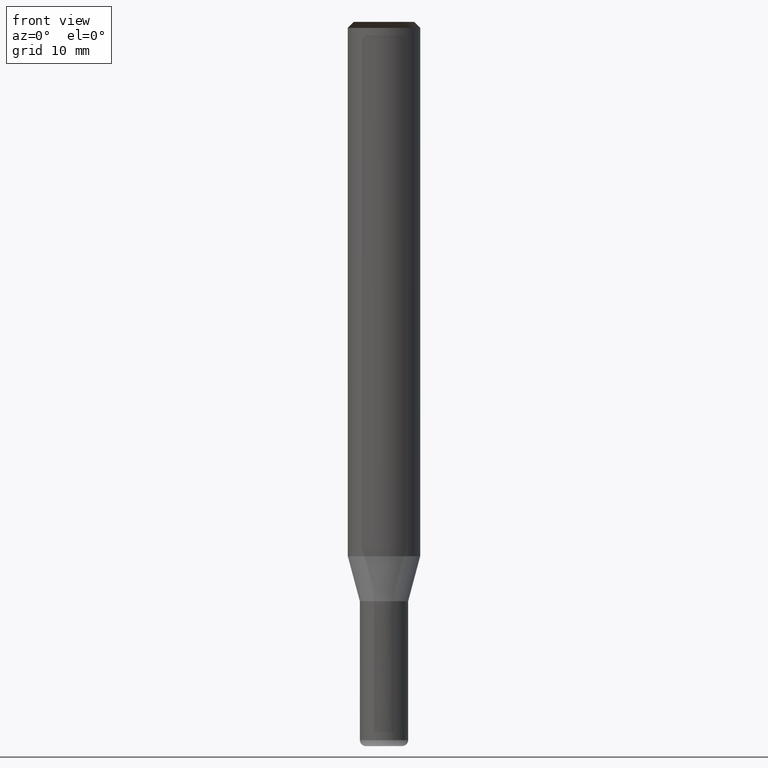
[diagram: clean part render]
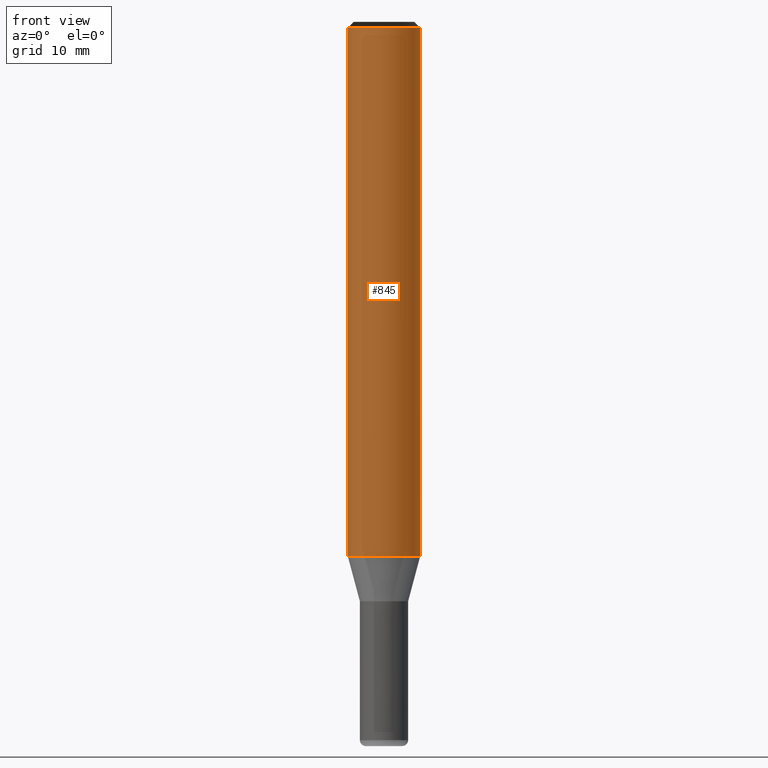
[diagram: same view with one face highlighted and labeled with its STEP entity id]
A machine part, front view. The second image highlights one B-rep face of the part: STEP entity #845.
In plain terms, the highlighted face is a freeform B-spline surface patch.
Its self-contained STEP definition (entity closure, byte-faithful):
#475=CARTESIAN_POINT('',(3.0,0.0,0.0));
#479=CARTESIAN_POINT('',(-3.0,0.0,0.0));
#480=CARTESIAN_POINT('',(3.0,0.0,43.767949192431));
#484=CARTESIAN_POINT('',(-3.0,0.0,43.767949192431));
#494=CARTESIAN_POINT('',(-3.0,-3.0,0.0));
#495=CARTESIAN_POINT('',(0.0,-3.0,0.0));
#496=CARTESIAN_POINT('',(3.0,-3.0,0.0));
#497=CARTESIAN_POINT('',(-3.0,-3.0,43.767949192431));
#498=CARTESIAN_POINT('',(0.0,-3.0,43.767949192431));
#499=CARTESIAN_POINT('',(3.0,-3.0,43.767949192431));
#826=(
BOUNDED_SURFACE()
B_SPLINE_SURFACE(1,2,(
(#479,#494,#495,#496,#475),
(#484,#497,#498,#499,#480)
), .UNSPECIFIED.,.F.,.F.,.F.)
B_SPLINE_SURFACE_WITH_KNOTS((2,2),(3,2,3),(
0.0,1.0),(
0.0,0.5,1.0), .UNSPECIFIED.)
GEOMETRIC_REPRESENTATION_ITEM()
RATIONAL_B_SPLINE_SURFACE(((1.0,0.707106781187,1.0,0.707106781187,1.0),
(1.0,0.707106781187,1.0,0.707106781187,1.0)
))
REPRESENTATION_ITEM('')
SURFACE()
);
#827=(
BOUNDED_CURVE()
B_SPLINE_CURVE(1,(#484,#479),.UNSPECIFIED.,.F.,.F.)
B_SPLINE_CURVE_WITH_KNOTS((2,2),
(0.0,1.0),.UNSPECIFIED.)
CURVE()
GEOMETRIC_REPRESENTATION_ITEM()
RATIONAL_B_SPLINE_CURVE((1.0,1.0))
REPRESENTATION_ITEM('')
);
#828=(
BOUNDED_CURVE()
B_SPLINE_CURVE(2,(#479,#494,#495,#496,#475),.UNSPECIFIED.,.F.,.F.)
B_SPLINE_CURVE_WITH_KNOTS((3,2,3),
(0.0,0.5,1.0),.UNSPECIFIED.)
CURVE()
GEOMETRIC_REPRESENTATION_ITEM()
RATIONAL_B_SPLINE_CURVE((1.0,0.707106781187,1.0,0.707106781187,1.0))
REPRESENTATION_ITEM('')
);
#829=(
BOUNDED_CURVE()
B_SPLINE_CURVE(1,(#475,#480),.UNSPECIFIED.,.F.,.F.)
B_SPLINE_CURVE_WITH_KNOTS((2,2),
(0.0,1.0),.UNSPECIFIED.)
CURVE()
GEOMETRIC_REPRESENTATION_ITEM()
RATIONAL_B_SPLINE_CURVE((1.0,1.0))
REPRESENTATION_ITEM('')
);
#830=(
BOUNDED_CURVE()
B_SPLINE_CURVE(2,(#480,#499,#498,#497,#484),.UNSPECIFIED.,.F.,.F.)
B_SPLINE_CURVE_WITH_KNOTS((3,2,3),
(0.0,0.5,1.0),.UNSPECIFIED.)
CURVE()
GEOMETRIC_REPRESENTATION_ITEM()
RATIONAL_B_SPLINE_CURVE((1.0,0.707106781187,1.0,0.707106781187,1.0))
REPRESENTATION_ITEM('')
);
#831=VERTEX_POINT('',#475);
#832=VERTEX_POINT('',#479);
#833=VERTEX_POINT('',#480);
#834=VERTEX_POINT('',#484);
#835=EDGE_CURVE('',#834,#832,#827,.T.);
#836=EDGE_CURVE('',#832,#831,#828,.T.);
#837=EDGE_CURVE('',#831,#833,#829,.T.);
#838=EDGE_CURVE('',#833,#834,#830,.T.);
#839=ORIENTED_EDGE('',*,*,#835,.T.);
#840=ORIENTED_EDGE('',*,*,#836,.T.);
#841=ORIENTED_EDGE('',*,*,#837,.T.);
#842=ORIENTED_EDGE('',*,*,#838,.T.);
#843=EDGE_LOOP('',(#839,#840,#841,#842));
#844=FACE_OUTER_BOUND('',#843,.T.);
#845=ADVANCED_FACE('',(#844),#826,.T.);